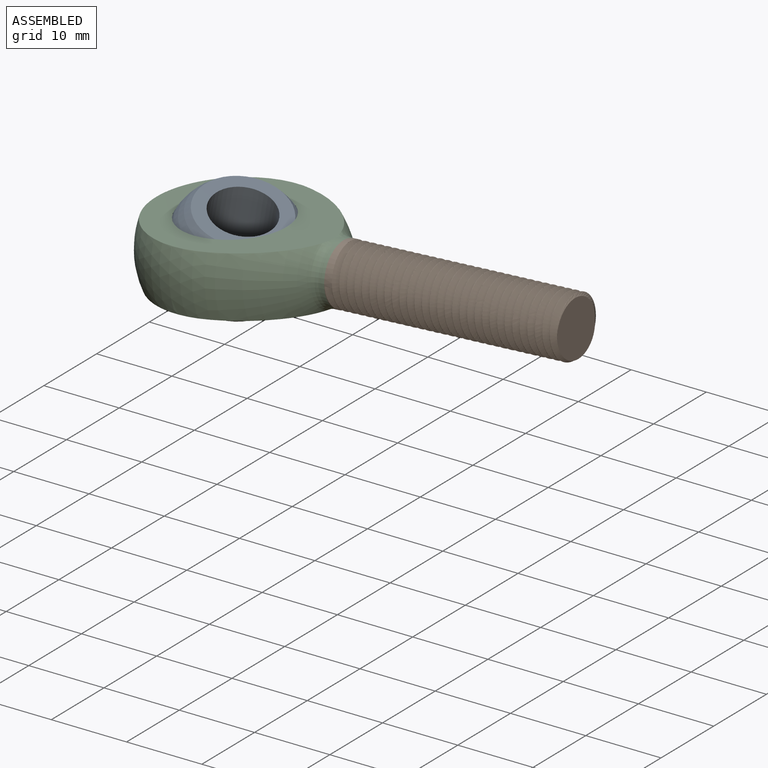
[diagram: assembled view]
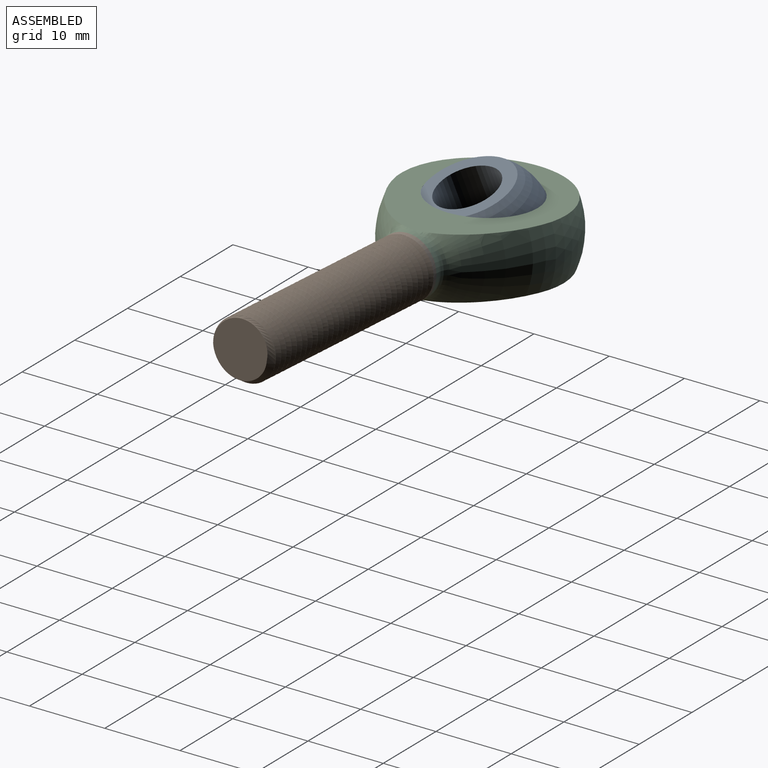
[diagram: assembled view, second angle]
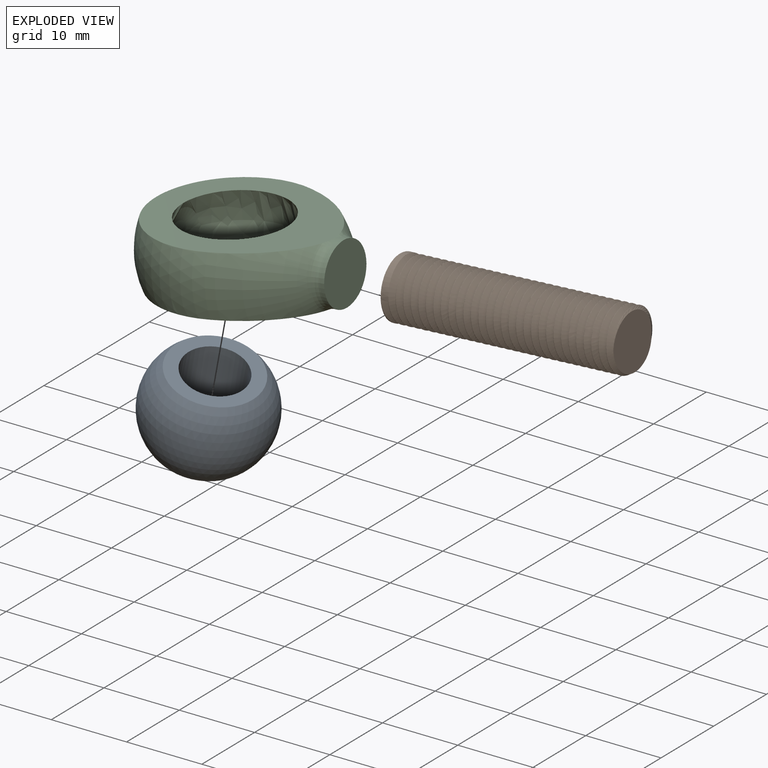
[diagram: exploded view]
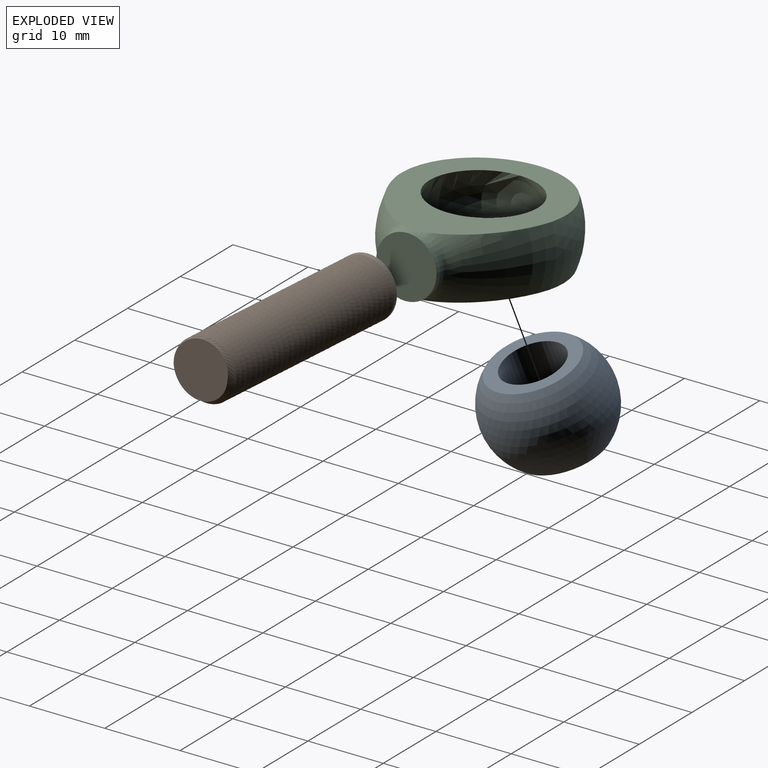
[diagram: exploded view, second angle]
ASSEMBLY  parts=3 mates=2
PART A: 4 faces, bbox 15.9x11x15.9 mm
  f0: plane 11.48x11.48mm, normal (0,-1,0), area 53.3mm2, adj f1,f3
  f1: sphere r=7.95mm, area 549.5mm2, adj f0,f2
  f2: plane 11.48x11.48mm, normal (0,1,0), area 53.3mm2, adj f1,f3
  f3: cylinder r=4mm len=11mm, axis (0,-1,0), area 276.5mm2, adj f0,f2
PART B: 36 faces, bbox 32.2x8.7x8.7 mm
  f0: cylinder r=4mm len=8mm, axis (-1,0,0), area 14.6mm2, adj f1,f31,f33,f34,f35
  f1: cylinder r=4mm len=8mm, axis (-1,0,0), area 1.2mm2, adj f0,f2,f34,f35
  f2: cylinder r=4mm len=8mm, axis (-1,0,0), area 1.2mm2, adj f1,f3,f34,f35
  f3: cylinder r=4mm len=8mm, axis (-1,0,0), area 1.2mm2, adj f2,f4,f34,f35
  f4: cylinder r=4mm len=8mm, axis (-1,0,0), area 1.3mm2, adj f3,f5,f34,f35
  f5: cylinder r=4mm len=8mm, axis (-1,0,0), area 1.4mm2, adj f4,f6,f34,f35
  f6: cylinder r=4mm len=8mm, axis (-1,0,0), area 1mm2, adj f5,f7,f34,f35
  f7: cylinder r=4mm len=8mm, axis (-1,0,0), area 1.4mm2, adj f6,f8,f34,f35
  f8: cylinder r=4mm len=8mm, axis (-1,0,0), area 1.2mm2, adj f7,f9,f34,f35
  f9: cylinder r=4mm len=8mm, axis (-1,0,0), area 1.2mm2, adj f8,f10,f34,f35
  f10: cylinder r=4mm len=8mm, axis (-1,0,0), area 1.2mm2, adj f9,f11,f34,f35
  f11: cylinder r=4mm len=8mm, axis (-1,0,0), area 1.2mm2, adj f10,f12,f34,f35
  f12: cylinder r=4mm len=8mm, axis (-1,0,0), area 1.2mm2, adj f11,f13,f34,f35
  f13: cylinder r=4mm len=8mm, axis (-1,0,0), area 1mm2, adj f12,f14,f34,f35
  f14: cylinder r=4mm len=8mm, axis (-1,0,0), area 1.2mm2, adj f13,f15,f34,f35
  f15: cylinder r=4mm len=8mm, axis (-1,0,0), area 1mm2, adj f14,f16,f34,f35
  f16: cylinder r=4mm len=8mm, axis (-1,0,0), area 1.2mm2, adj f15,f17,f34,f35
  f17: cylinder r=4mm len=8mm, axis (-1,0,0), area 1.4mm2, adj f16,f18,f34,f35
  f18: cylinder r=4mm len=8mm, axis (-1,0,0), area 1mm2, adj f17,f19,f34,f35
  f19: cylinder r=4mm len=8mm, axis (-1,0,0), area 1.3mm2, adj f18,f20,f34,f35
  f20: cylinder r=4mm len=8mm, axis (-1,0,0), area 1.4mm2, adj f19,f21,f34,f35
  f21: cylinder r=4mm len=8mm, axis (-1,0,0), area 0.9mm2, adj f20,f22,f34,f35
  f22: cylinder r=4mm len=8mm, axis (-1,0,0), area 1.4mm2, adj f21,f23,f34,f35
  f23: cylinder r=4mm len=8mm, axis (-1,0,0), area 1.4mm2, adj f22,f24,f34,f35
  f24: cylinder r=4mm len=8mm, axis (-1,0,0), area 1.3mm2, adj f23,f25,f34,f35
  f25: cylinder r=4mm len=8mm, axis (-1,0,0), area 1.4mm2, adj f24,f26,f34,f35
  f26: cylinder r=4mm len=8mm, axis (-1,0,0), area 1.3mm2, adj f25,f27,f34,f35
  f27: cylinder r=4mm len=8mm, axis (-1,0,0), area 1.3mm2, adj f26,f28,f34,f35
  f28: cylinder r=4mm len=8mm, axis (-1,0,0), area 1.3mm2, adj f27,f29,f34,f35
  f29: cylinder r=4mm len=8mm, axis (-1,0,0), area 1.3mm2, adj f28,f30,f34,f35
  f30: cylinder r=4mm len=4.24mm, axis (-1,0,0), area 0.3mm2, adj f29,f32,f34,f35
  f31: plane 8x8mm, normal (-1,0,0), area 50.3mm2, adj f0
  f32: plane 7.91x7.89mm, normal (1,0,0), area 40.9mm2, adj f30,f34,f35
  f33: plane 0.97x0.84mm, normal (0,0,-1), area 0.4mm2, adj f0,f34,f35
  f34: bspline ~31.44x7.98mm, area 662.3mm2, adj f0,f1,f2,f3,f4,f5,f6,f7
  f35: bspline ~30.96x7.99mm, area 643.8mm2, adj f0,f1,f2,f3,f4,f5,f6,f7
PART C: 14 faces, bbox 33.2x29.5x29.5 mm
  f0: revolved ~18.91x9.49mm, area 127.7mm2, adj f2,f5,f6,f9
  f1: revolved ~18.91x9.49mm, area 127.7mm2, adj f2,f5,f6,f12
  f2: sphere r=11.2mm, area 336.7mm2, adj f0,f1,f5,f6
  f3: cylinder r=4mm len=8mm, axis (-1,0,0), area 16.6mm2, adj f4,f8,f9,f10,f11,f12,f13
  f4: plane 8x8mm, normal (1,0,0), area 50.3mm2, adj f3
  f5: plane 30.72x27.99mm, normal (0,0,-1), area 228.1mm2, adj f0,f1,f2,f7,f10,f11
  f6: plane 30.72x27.99mm, normal (0,0,1), area 228.1mm2, adj f0,f1,f2,f7,f8,f13
  f7: sphere r=7.95mm, area 384.5mm2, adj f5,f6
  f8: bspline ~2.61x1.36mm, area 0.8mm2, adj f3,f6,f9
  f9: torus R=5.5mm, axis (-1,0,0), area 11.8mm2, adj f0,f3,f8,f10
  f10: bspline ~2.61x1.36mm, area 0.8mm2, adj f3,f5,f9
  f11: bspline ~2.61x1.36mm, area 0.8mm2, adj f3,f5,f12
  f12: torus R=5.5mm, axis (-1,0,0), area 11.8mm2, adj f1,f3,f11,f13
  f13: bspline ~2.61x1.36mm, area 0.8mm2, adj f3,f6,f12
PLACE A rot(axis=(-0.92,0.39,-0.08),88.7deg) t=(14.5,7.32,9.5)mm
PLACE B rot(axis=(0,-1,0),3.3deg) t=(14.49,7.32,9.5)mm
PLACE C rot(axis=(0,-1,0),3.3deg) t=(14.5,7.32,9.5)mm
MATE ball A.f3 <-> C.f7  axis (0.28,-0.17,0.95) through (14.5,7.32,9.5)mm
MATE fastened C.f3 <-> B.f0  axis (1,0,0.06) through (28.93,7.32,10.34)mm
